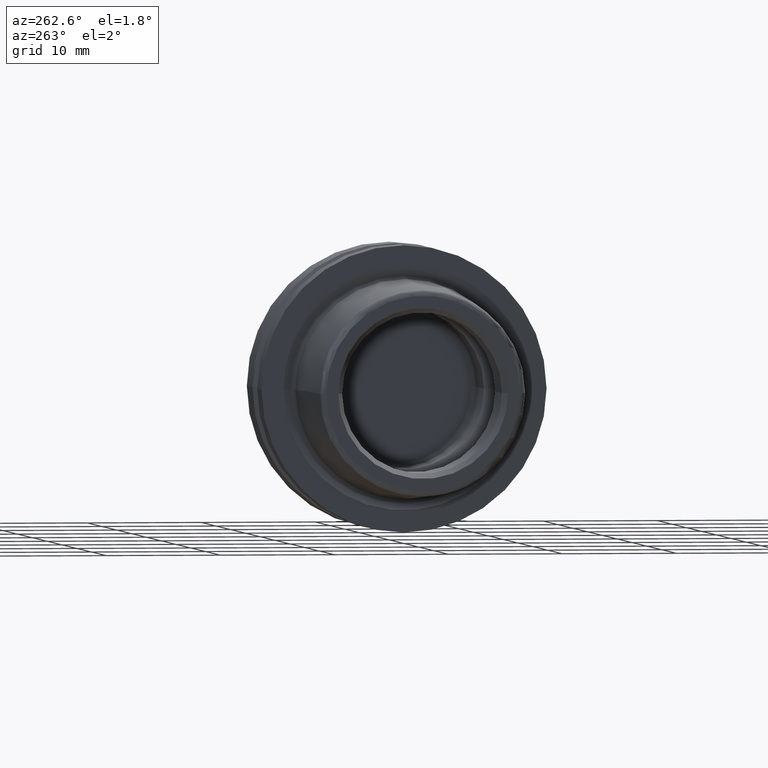
[diagram: clean part render]
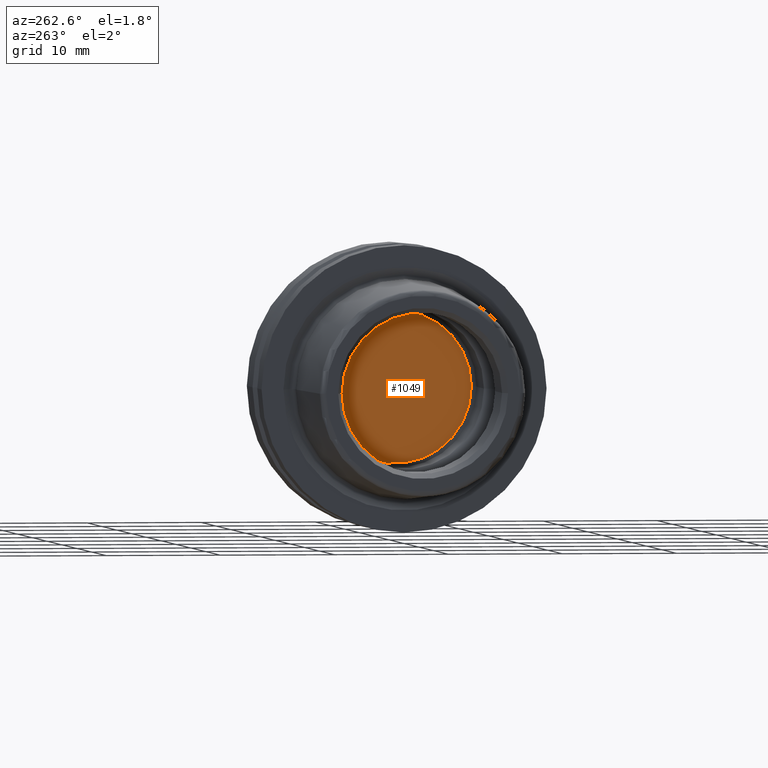
[diagram: same view with one face highlighted and labeled with its STEP entity id]
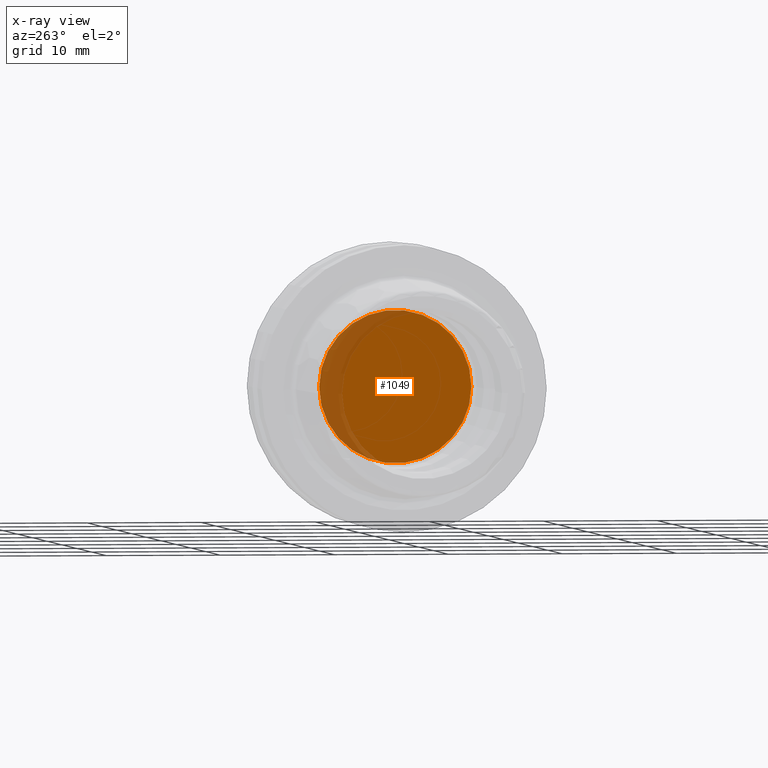
[diagram: x-ray of the same camera — body ghosted, the highlighted face saturated]
A machine part, auxiliary view. The second image highlights one B-rep face of the part: STEP entity #1049.
The next image is the same camera in x-ray: the body ghosted, the highlighted face saturated — about 19% of this face is hidden behind the body in this view.
In plain terms, the highlighted planar face has unit normal (1, 0, 0).
Its self-contained STEP definition (entity closure, byte-faithful):
#213=CARTESIAN_POINT('',(5.95E0,0.E0,0.E0));
#214=DIRECTION('',(-1.E0,0.E0,0.E0));
#215=DIRECTION('',(0.E0,1.E0,0.E0));
#216=AXIS2_PLACEMENT_3D('',#213,#214,#215);
#223=CARTESIAN_POINT('',(5.95E0,0.E0,0.E0));
#224=DIRECTION('',(1.E0,0.E0,0.E0));
#225=DIRECTION('',(0.E0,1.E0,0.E0));
#226=AXIS2_PLACEMENT_3D('',#223,#224,#225);
#610=CARTESIAN_POINT('',(5.95E0,6.675E0,0.E0));
#612=VERTEX_POINT('',#610);
#614=CARTESIAN_POINT('',(5.95E0,-6.675E0,0.E0));
#616=VERTEX_POINT('',#614);
#1040=CARTESIAN_POINT('',(5.95E0,0.E0,0.E0));
#1041=DIRECTION('',(1.E0,0.E0,0.E0));
#1042=DIRECTION('',(0.E0,-1.E0,0.E0));
#1043=AXIS2_PLACEMENT_3D('',#1040,#1041,#1042);
#1044=PLANE('',#1043);
#1045=ORIENTED_EDGE('',*,*,#1035,.T.);
#1046=ORIENTED_EDGE('',*,*,#1019,.F.);
#1047=EDGE_LOOP('',(#1045,#1046));
#1048=FACE_OUTER_BOUND('',#1047,.F.);
#1049=ADVANCED_FACE('',(#1048),#1044,.F.);
#217=CIRCLE('',#216,6.675E0);
#227=CIRCLE('',#226,6.675E0);
#1019=EDGE_CURVE('',#612,#616,#217,.T.);
#1035=EDGE_CURVE('',#612,#616,#227,.T.);